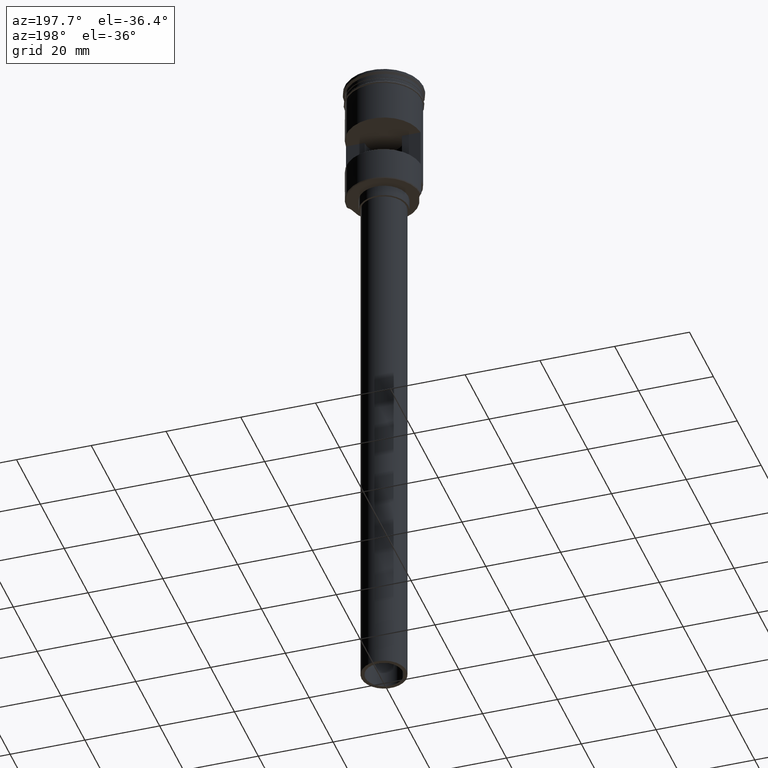
[diagram: clean part render]
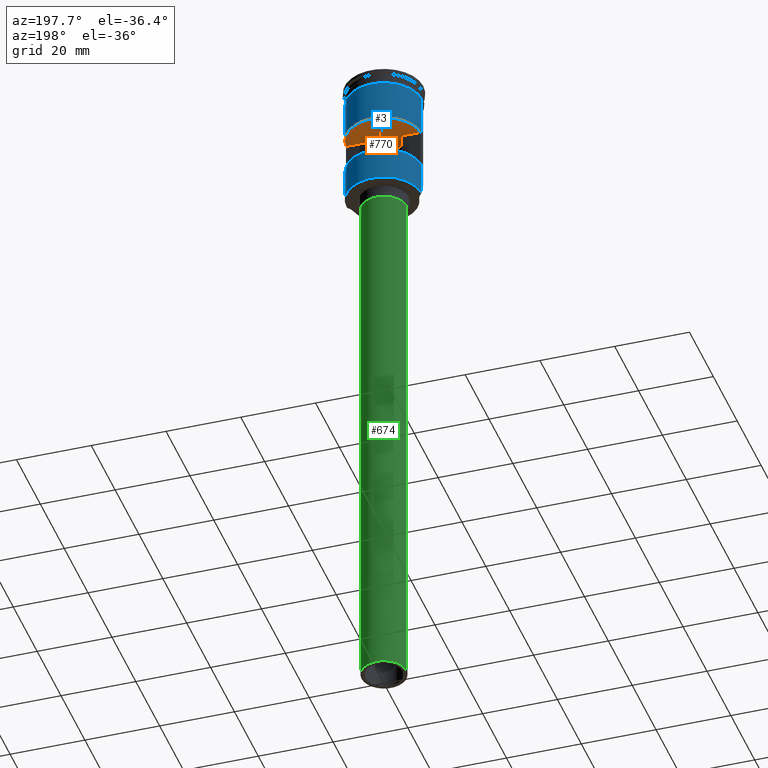
[diagram: same view with three faces highlighted in distinct colors, each labeled with its STEP entity id]
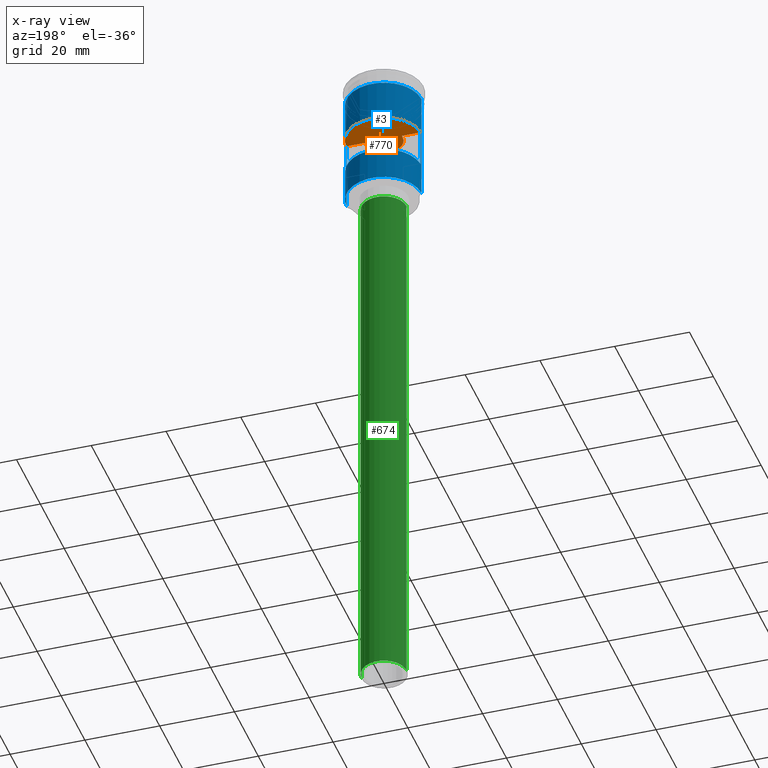
[diagram: x-ray of the same camera — body ghosted, the three highlighted faces saturated]
A machine part, auxiliary view with three faces highlighted in distinct colors.
The next image is the same camera in x-ray (body ghosted, the three faces saturated) — at least one of them is partly hidden behind the body in this view.
Their STEP definitions:

[orange] entity #770 — the highlighted planar face has unit normal (0, -0, 1).
#36 = DIRECTION ( 'NONE',  ( 1.000000000000000000, -0.000000000000000000, -0.000000000000000000 ) ) ;
#39 = CARTESIAN_POINT ( 'NONE',  ( 0.000000000000000000, 0.000000000000000000, -15.00000000000000000 ) ) ;
#72 = AXIS2_PLACEMENT_3D ( 'NONE', #479, #524, #173 ) ;
#89 = EDGE_CURVE ( 'NONE', #118, #827, #1278, .T. ) ;
#91 = DIRECTION ( 'NONE',  ( -0.000000000000000000, 1.845450506358306558E-16, -1.000000000000000000 ) ) ;
#118 = VERTEX_POINT ( 'NONE', #293 ) ;
#142 = PLANE ( 'NONE',  #1257 ) ;
#163 = CARTESIAN_POINT ( 'NONE',  ( -10.50000000000000000, 0.6000000000000000888, -15.00000000000000000 ) ) ;
#173 = DIRECTION ( 'NONE',  ( 0.000000000000000000, -1.000000000000000000, -3.469446951953613696E-16 ) ) ;
#193 = DIRECTION ( 'NONE',  ( -0.000000000000000000, 1.845450506358306558E-16, -1.000000000000000000 ) ) ;
#251 = LINE ( 'NONE', #891, #1439 ) ;
#293 = CARTESIAN_POINT ( 'NONE',  ( 5.000000000000000888, 6.123233995736766282E-16, -15.00000000000000000 ) ) ;
#298 = DIRECTION ( 'NONE',  ( -0.000000000000000000, 1.845450506358306558E-16, -1.000000000000000000 ) ) ;
#327 = CARTESIAN_POINT ( 'NONE',  ( 4.963869458396339418, 0.6000000000000000888, -15.00000000000000000 ) ) ;
#351 = CIRCLE ( 'NONE', #1526, 5.000000000000000888 ) ;
#391 = VERTEX_POINT ( 'NONE', #1112 ) ;
#442 = ORIENTED_EDGE ( 'NONE', *, *, #496, .T. ) ;
#469 = EDGE_LOOP ( 'NONE', ( #1594, #442, #714, #1383, #853, #926 ) ) ;
#479 = CARTESIAN_POINT ( 'NONE',  ( 0.000000000000000000, 0.000000000000000000, -15.00000000000000000 ) ) ;
#491 = CARTESIAN_POINT ( 'NONE',  ( -10.50000000000000000, 0.6000000000000000888, -15.00000000000000000 ) ) ;
#496 = EDGE_CURVE ( 'NONE', #966, #118, #351, .T. ) ;
#524 = DIRECTION ( 'NONE',  ( -0.000000000000000000, 1.845450506358306558E-16, -1.000000000000000000 ) ) ;
#538 = VECTOR ( 'NONE', #36, 1000.000000000000000 ) ;
#552 = EDGE_CURVE ( 'NONE', #966, #1605, #251, .T. ) ;
#580 = DIRECTION ( 'NONE',  ( 0.000000000000000000, -1.000000000000000000, -3.469446951953613696E-16 ) ) ;
#583 = CARTESIAN_POINT ( 'NONE',  ( 0.000000000000000000, 0.000000000000000000, -15.00000000000000000 ) ) ;
#668 = DIRECTION ( 'NONE',  ( 0.000000000000000000, -1.000000000000000000, -1.734723475976808080E-16 ) ) ;
#678 = CARTESIAN_POINT ( 'NONE',  ( 9.981983770774210285, 0.6000000000000000888, -15.00000000000000000 ) ) ;
#703 = CARTESIAN_POINT ( 'NONE',  ( 0.000000000000000000, 0.000000000000000000, -15.00000000000000000 ) ) ;
#714 = ORIENTED_EDGE ( 'NONE', *, *, #89, .T. ) ;
#770 = ADVANCED_FACE ( 'NONE', ( #1114 ), #142, .F. ) ;
#827 = VERTEX_POINT ( 'NONE', #1133 ) ;
#829 = EDGE_CURVE ( 'NONE', #391, #1514, #1399, .T. ) ;
#853 = ORIENTED_EDGE ( 'NONE', *, *, #829, .F. ) ;
#854 = DIRECTION ( 'NONE',  ( 1.000000000000000000, -0.000000000000000000, -0.000000000000000000 ) ) ;
#876 = AXIS2_PLACEMENT_3D ( 'NONE', #39, #298, #668 ) ;
#891 = CARTESIAN_POINT ( 'NONE',  ( -10.50000000000000000, 0.6000000000000000888, -15.00000000000000000 ) ) ;
#919 = EDGE_CURVE ( 'NONE', #827, #1514, #949, .T. ) ;
#926 = ORIENTED_EDGE ( 'NONE', *, *, #1111, .T. ) ;
#930 = AXIS2_PLACEMENT_3D ( 'NONE', #583, #193, #1180 ) ;
#949 = CIRCLE ( 'NONE', #930, 5.000000000000000888 ) ;
#966 = VERTEX_POINT ( 'NONE', #327 ) ;
#978 = DIRECTION ( 'NONE',  ( 0.000000000000000000, -1.000000000000000000, -1.845450506358306558E-16 ) ) ;
#1111 = EDGE_CURVE ( 'NONE', #391, #1605, #1530, .T. ) ;
#1112 = CARTESIAN_POINT ( 'NONE',  ( -9.981983770774217390, 0.6000000000000000888, -15.00000000000000000 ) ) ;
#1114 = FACE_OUTER_BOUND ( 'NONE', #469, .T. ) ;
#1133 = CARTESIAN_POINT ( 'NONE',  ( -5.000000000000000888, 0.000000000000000000, -15.00000000000000000 ) ) ;
#1180 = DIRECTION ( 'NONE',  ( 0.000000000000000000, -1.000000000000000000, -3.469446951953613696E-16 ) ) ;
#1235 = DIRECTION ( 'NONE',  ( 0.000000000000000000, -1.845450506358306558E-16, 1.000000000000000000 ) ) ;
#1256 = CARTESIAN_POINT ( 'NONE',  ( -4.963869458396343859, 0.5999999999999999778, -15.00000000000000000 ) ) ;
#1257 = AXIS2_PLACEMENT_3D ( 'NONE', #491, #1235, #978 ) ;
#1278 = CIRCLE ( 'NONE', #72, 5.000000000000000888 ) ;
#1383 = ORIENTED_EDGE ( 'NONE', *, *, #919, .T. ) ;
#1399 = LINE ( 'NONE', #163, #538 ) ;
#1439 = VECTOR ( 'NONE', #854, 1000.000000000000000 ) ;
#1514 = VERTEX_POINT ( 'NONE', #1256 ) ;
#1526 = AXIS2_PLACEMENT_3D ( 'NONE', #703, #91, #580 ) ;
#1530 = CIRCLE ( 'NONE', #876, 9.999999999999994671 ) ;
#1594 = ORIENTED_EDGE ( 'NONE', *, *, #552, .F. ) ;
#1605 = VERTEX_POINT ( 'NONE', #678 ) ;

[blue] entity #3 — the highlighted cylindrical surface (partial cylindrical patch) has radius 10 mm, axis along (-0, -0, 1).
#3 = ADVANCED_FACE ( 'NONE', ( #515, #5 ), #1483, .T. ) ;
#5 = FACE_OUTER_BOUND ( 'NONE', #986, .T. ) ;
#22 = VECTOR ( 'NONE', #29, 1000.000000000000000 ) ;
#26 = ORIENTED_EDGE ( 'NONE', *, *, #959, .T. ) ;
#29 = DIRECTION ( 'NONE',  ( -0.000000000000000000, -0.000000000000000000, 1.000000000000000000 ) ) ;
#39 = CARTESIAN_POINT ( 'NONE',  ( 0.000000000000000000, 0.000000000000000000, -15.00000000000000000 ) ) ;
#56 = LINE ( 'NONE', #528, #747 ) ;
#85 = VERTEX_POINT ( 'NONE', #1096 ) ;
#93 = VERTEX_POINT ( 'NONE', #1266 ) ;
#97 = VERTEX_POINT ( 'NONE', #663 ) ;
#138 = CARTESIAN_POINT ( 'NONE',  ( -9.999999999999991118, 0.000000000000000000, -33.79999999999998295 ) ) ;
#165 = LINE ( 'NONE', #777, #22 ) ;
#204 = DIRECTION ( 'NONE',  ( 0.000000000000000000, 0.000000000000000000, 1.000000000000000000 ) ) ;
#208 = CARTESIAN_POINT ( 'NONE',  ( 9.981983770774217390, 0.5999999999999998668, 0.000000000000000000 ) ) ;
#225 = ORIENTED_EDGE ( 'NONE', *, *, #315, .F. ) ;
#254 = VERTEX_POINT ( 'NONE', #138 ) ;
#270 = DIRECTION ( 'NONE',  ( -0.000000000000000000, -0.000000000000000000, 1.000000000000000000 ) ) ;
#298 = DIRECTION ( 'NONE',  ( -0.000000000000000000, 1.845450506358306558E-16, -1.000000000000000000 ) ) ;
#313 = VERTEX_POINT ( 'NONE', #989 ) ;
#315 = EDGE_CURVE ( 'NONE', #1393, #93, #1280, .T. ) ;
#368 = ORIENTED_EDGE ( 'NONE', *, *, #1055, .F. ) ;
#369 = DIRECTION ( 'NONE',  ( -0.000000000000000000, -0.000000000000000000, 1.000000000000000000 ) ) ;
#379 = ORIENTED_EDGE ( 'NONE', *, *, #1252, .F. ) ;
#391 = VERTEX_POINT ( 'NONE', #1112 ) ;
#408 = VECTOR ( 'NONE', #899, 1000.000000000000000 ) ;
#441 = CARTESIAN_POINT ( 'NONE',  ( 0.000000000000000000, 0.000000000000000000, -33.79999999999998295 ) ) ;
#443 = LINE ( 'NONE', #208, #1104 ) ;
#451 = CARTESIAN_POINT ( 'NONE',  ( 9.981983770774210285, 0.6000000000000000888, -25.00000000000000000 ) ) ;
#452 = AXIS2_PLACEMENT_3D ( 'NONE', #990, #270, #605 ) ;
#453 = VECTOR ( 'NONE', #369, 1000.000000000000000 ) ;
#489 = DIRECTION ( 'NONE',  ( 0.000000000000000000, 0.000000000000000000, 1.000000000000000000 ) ) ;
#515 = FACE_BOUND ( 'NONE', #1492, .T. ) ;
#518 = EDGE_CURVE ( 'NONE', #941, #85, #563, .T. ) ;
#526 = CARTESIAN_POINT ( 'NONE',  ( 0.000000000000000000, 0.000000000000000000, -3.999999999999996447 ) ) ;
#528 = CARTESIAN_POINT ( 'NONE',  ( -9.981983770774217390, 0.5999999999999998668, 0.000000000000000000 ) ) ;
#545 = DIRECTION ( 'NONE',  ( -0.000000000000000000, -0.000000000000000000, 1.000000000000000000 ) ) ;
#563 = LINE ( 'NONE', #1072, #823 ) ;
#569 = ORIENTED_EDGE ( 'NONE', *, *, #1131, .F. ) ;
#570 = CARTESIAN_POINT ( 'NONE',  ( -9.999999999999991118, 0.000000000000000000, -29.29999999999997229 ) ) ;
#605 = DIRECTION ( 'NONE',  ( 1.000000000000000000, 0.000000000000000000, 0.000000000000000000 ) ) ;
#621 = EDGE_CURVE ( 'NONE', #97, #1098, #1101, .T. ) ;
#645 = CIRCLE ( 'NONE', #1496, 9.999999999999998224 ) ;
#648 = CARTESIAN_POINT ( 'NONE',  ( -9.999999999999991118, 0.000000000000000000, -33.99999999999999289 ) ) ;
#663 = CARTESIAN_POINT ( 'NONE',  ( 9.999999999999994671, 1.224646799147352665E-15, -29.29999999999997229 ) ) ;
#668 = DIRECTION ( 'NONE',  ( 0.000000000000000000, -1.000000000000000000, -1.734723475976808080E-16 ) ) ;
#678 = CARTESIAN_POINT ( 'NONE',  ( 9.981983770774210285, 0.6000000000000000888, -15.00000000000000000 ) ) ;
#727 = EDGE_CURVE ( 'NONE', #254, #941, #1285, .T. ) ;
#747 = VECTOR ( 'NONE', #1022, 1000.000000000000000 ) ;
#777 = CARTESIAN_POINT ( 'NONE',  ( 9.999999999999991118, 1.224646799147352270E-15, -33.99999999999999289 ) ) ;
#785 = ORIENTED_EDGE ( 'NONE', *, *, #727, .T. ) ;
#808 = ORIENTED_EDGE ( 'NONE', *, *, #518, .T. ) ;
#823 = VECTOR ( 'NONE', #1459, 1000.000000000000000 ) ;
#838 = EDGE_CURVE ( 'NONE', #1098, #85, #645, .T. ) ;
#876 = AXIS2_PLACEMENT_3D ( 'NONE', #39, #298, #668 ) ;
#887 = ORIENTED_EDGE ( 'NONE', *, *, #1111, .F. ) ;
#899 = DIRECTION ( 'NONE',  ( -0.000000000000000000, -0.000000000000000000, 1.000000000000000000 ) ) ;
#905 = CIRCLE ( 'NONE', #1335, 9.999999999999994671 ) ;
#941 = VERTEX_POINT ( 'NONE', #570 ) ;
#942 = DIRECTION ( 'NONE',  ( 0.000000000000000000, 0.000000000000000000, -1.000000000000000000 ) ) ;
#959 = EDGE_CURVE ( 'NONE', #313, #254, #905, .T. ) ;
#986 = EDGE_LOOP ( 'NONE', ( #785, #808, #1212, #1430, #368, #26 ) ) ;
#987 = CARTESIAN_POINT ( 'NONE',  ( 9.999999999999994671, 0.000000000000000000, 0.000000000000000000 ) ) ;
#989 = CARTESIAN_POINT ( 'NONE',  ( 9.999999999999991118, 1.224646799147352270E-15, -33.79999999999998295 ) ) ;
#990 = CARTESIAN_POINT ( 'NONE',  ( 0.000000000000000000, 0.000000000000000000, 0.000000000000000000 ) ) ;
#995 = AXIS2_PLACEMENT_3D ( 'NONE', #1482, #489, #1117 ) ;
#1015 = CARTESIAN_POINT ( 'NONE',  ( 9.999999999999998224, 0.000000000000000000, -3.999999999999996447 ) ) ;
#1020 = DIRECTION ( 'NONE',  ( 1.000000000000000000, 0.000000000000000000, 0.000000000000000000 ) ) ;
#1022 = DIRECTION ( 'NONE',  ( -0.000000000000000000, -0.000000000000000000, 1.000000000000000000 ) ) ;
#1055 = EDGE_CURVE ( 'NONE', #313, #97, #165, .T. ) ;
#1072 = CARTESIAN_POINT ( 'NONE',  ( -9.999999999999994671, 1.224646799147352665E-15, 0.000000000000000000 ) ) ;
#1096 = CARTESIAN_POINT ( 'NONE',  ( -10.00000000000000000, 1.224646799147353256E-15, -3.999999999999996447 ) ) ;
#1098 = VERTEX_POINT ( 'NONE', #1015 ) ;
#1101 = LINE ( 'NONE', #987, #453 ) ;
#1104 = VECTOR ( 'NONE', #942, 1000.000000000000000 ) ;
#1111 = EDGE_CURVE ( 'NONE', #391, #1605, #1530, .T. ) ;
#1112 = CARTESIAN_POINT ( 'NONE',  ( -9.981983770774217390, 0.6000000000000000888, -15.00000000000000000 ) ) ;
#1117 = DIRECTION ( 'NONE',  ( -1.000000000000000000, -8.881784197001250351E-16, 0.000000000000000000 ) ) ;
#1131 = EDGE_CURVE ( 'NONE', #93, #391, #56, .T. ) ;
#1212 = ORIENTED_EDGE ( 'NONE', *, *, #838, .F. ) ;
#1252 = EDGE_CURVE ( 'NONE', #1605, #1393, #443, .T. ) ;
#1266 = CARTESIAN_POINT ( 'NONE',  ( -9.981983770774217390, 0.5999999999999998668, -25.00000000000000000 ) ) ;
#1280 = CIRCLE ( 'NONE', #995, 9.999999999999994671 ) ;
#1285 = LINE ( 'NONE', #648, #408 ) ;
#1290 = DIRECTION ( 'NONE',  ( -1.000000000000000000, 0.000000000000000000, 0.000000000000000000 ) ) ;
#1335 = AXIS2_PLACEMENT_3D ( 'NONE', #441, #204, #1290 ) ;
#1393 = VERTEX_POINT ( 'NONE', #451 ) ;
#1430 = ORIENTED_EDGE ( 'NONE', *, *, #621, .F. ) ;
#1459 = DIRECTION ( 'NONE',  ( -0.000000000000000000, -0.000000000000000000, 1.000000000000000000 ) ) ;
#1482 = CARTESIAN_POINT ( 'NONE',  ( 0.000000000000000000, 0.000000000000000000, -25.00000000000000000 ) ) ;
#1483 = CYLINDRICAL_SURFACE ( 'NONE', #452, 9.999999999999994671 ) ;
#1492 = EDGE_LOOP ( 'NONE', ( #379, #887, #569, #225 ) ) ;
#1496 = AXIS2_PLACEMENT_3D ( 'NONE', #526, #545, #1020 ) ;
#1530 = CIRCLE ( 'NONE', #876, 9.999999999999994671 ) ;
#1605 = VERTEX_POINT ( 'NONE', #678 ) ;

[green] entity #674 — the highlighted cylindrical surface (edge-blend (fillet) strip) has radius 6 mm, axis along (-0, -0, 1).
#21 = CIRCLE ( 'NONE', #228, 6.000000000000000888 ) ;
#27 = EDGE_CURVE ( 'NONE', #335, #141, #365, .T. ) ;
#46 = DIRECTION ( 'NONE',  ( 1.000000000000000000, 0.000000000000000000, 0.000000000000000000 ) ) ;
#62 = DIRECTION ( 'NONE',  ( 0.000000000000000000, 0.000000000000000000, -1.000000000000000000 ) ) ;
#67 = CARTESIAN_POINT ( 'NONE',  ( 0.000000000000000000, 0.000000000000000000, -184.0000000000000000 ) ) ;
#92 = CARTESIAN_POINT ( 'NONE',  ( -6.000000000000000888, 7.347880794884120722E-16, -37.00000000000000000 ) ) ;
#119 = CARTESIAN_POINT ( 'NONE',  ( -6.000000000000000888, 7.347880794884120722E-16, -184.0000000000000000 ) ) ;
#132 = ORIENTED_EDGE ( 'NONE', *, *, #27, .F. ) ;
#141 = VERTEX_POINT ( 'NONE', #422 ) ;
#171 = CARTESIAN_POINT ( 'NONE',  ( 0.000000000000000000, 0.000000000000000000, -184.0000000000000000 ) ) ;
#194 = ORIENTED_EDGE ( 'NONE', *, *, #882, .F. ) ;
#228 = AXIS2_PLACEMENT_3D ( 'NONE', #1438, #812, #1189 ) ;
#230 = ORIENTED_EDGE ( 'NONE', *, *, #953, .T. ) ;
#299 = DIRECTION ( 'NONE',  ( -0.000000000000000000, -0.000000000000000000, 1.000000000000000000 ) ) ;
#325 = AXIS2_PLACEMENT_3D ( 'NONE', #171, #299, #46 ) ;
#335 = VERTEX_POINT ( 'NONE', #399 ) ;
#365 = LINE ( 'NONE', #1487, #561 ) ;
#399 = CARTESIAN_POINT ( 'NONE',  ( 6.000000000000000888, 0.000000000000000000, -184.0000000000000000 ) ) ;
#422 = CARTESIAN_POINT ( 'NONE',  ( 6.000000000000000888, 0.000000000000000000, -37.00000000000000000 ) ) ;
#455 = CIRCLE ( 'NONE', #480, 6.000000000000000888 ) ;
#480 = AXIS2_PLACEMENT_3D ( 'NONE', #67, #62, #553 ) ;
#553 = DIRECTION ( 'NONE',  ( -1.000000000000000000, 0.000000000000000000, 0.000000000000000000 ) ) ;
#561 = VECTOR ( 'NONE', #894, 1000.000000000000000 ) ;
#615 = VERTEX_POINT ( 'NONE', #119 ) ;
#674 = ADVANCED_FACE ( 'NONE', ( #787 ), #793, .T. ) ;
#723 = EDGE_LOOP ( 'NONE', ( #194, #1070, #230, #132 ) ) ;
#787 = FACE_OUTER_BOUND ( 'NONE', #723, .T. ) ;
#793 = CYLINDRICAL_SURFACE ( 'NONE', #325, 6.000000000000000888 ) ;
#809 = DIRECTION ( 'NONE',  ( -0.000000000000000000, -0.000000000000000000, 1.000000000000000000 ) ) ;
#812 = DIRECTION ( 'NONE',  ( 0.000000000000000000, 0.000000000000000000, -1.000000000000000000 ) ) ;
#814 = LINE ( 'NONE', #1417, #1443 ) ;
#882 = EDGE_CURVE ( 'NONE', #615, #335, #455, .T. ) ;
#894 = DIRECTION ( 'NONE',  ( -0.000000000000000000, -0.000000000000000000, 1.000000000000000000 ) ) ;
#953 = EDGE_CURVE ( 'NONE', #1592, #141, #21, .T. ) ;
#1070 = ORIENTED_EDGE ( 'NONE', *, *, #1218, .T. ) ;
#1189 = DIRECTION ( 'NONE',  ( -1.000000000000000000, 0.000000000000000000, 0.000000000000000000 ) ) ;
#1218 = EDGE_CURVE ( 'NONE', #615, #1592, #814, .T. ) ;
#1417 = CARTESIAN_POINT ( 'NONE',  ( -6.000000000000000888, 7.347880794884120722E-16, -184.0000000000000000 ) ) ;
#1438 = CARTESIAN_POINT ( 'NONE',  ( 0.000000000000000000, 0.000000000000000000, -37.00000000000000000 ) ) ;
#1443 = VECTOR ( 'NONE', #809, 1000.000000000000000 ) ;
#1487 = CARTESIAN_POINT ( 'NONE',  ( 6.000000000000000888, 0.000000000000000000, -184.0000000000000000 ) ) ;
#1592 = VERTEX_POINT ( 'NONE', #92 ) ;